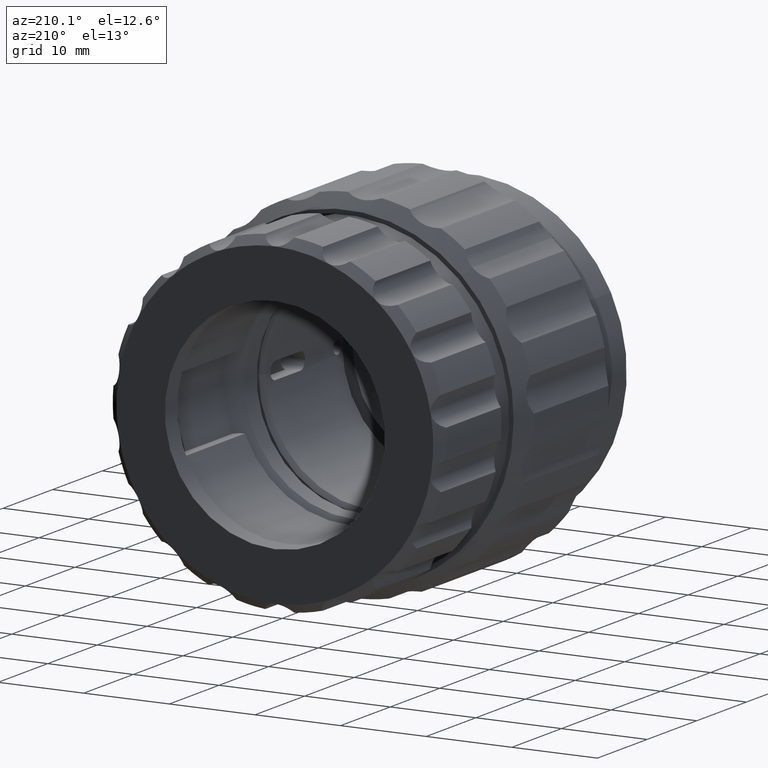
[diagram: clean part render]
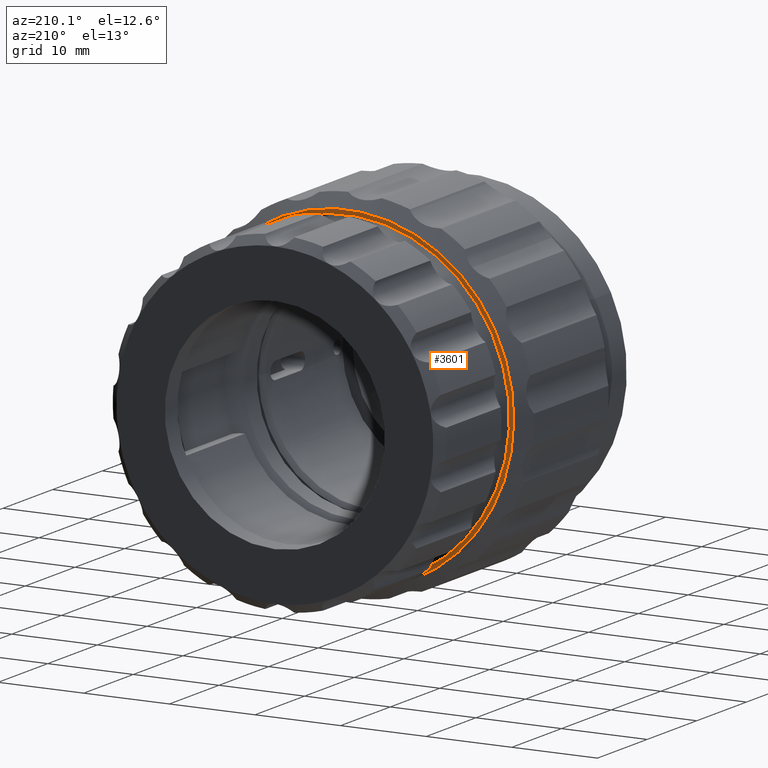
[diagram: same view with one face highlighted and labeled with its STEP entity id]
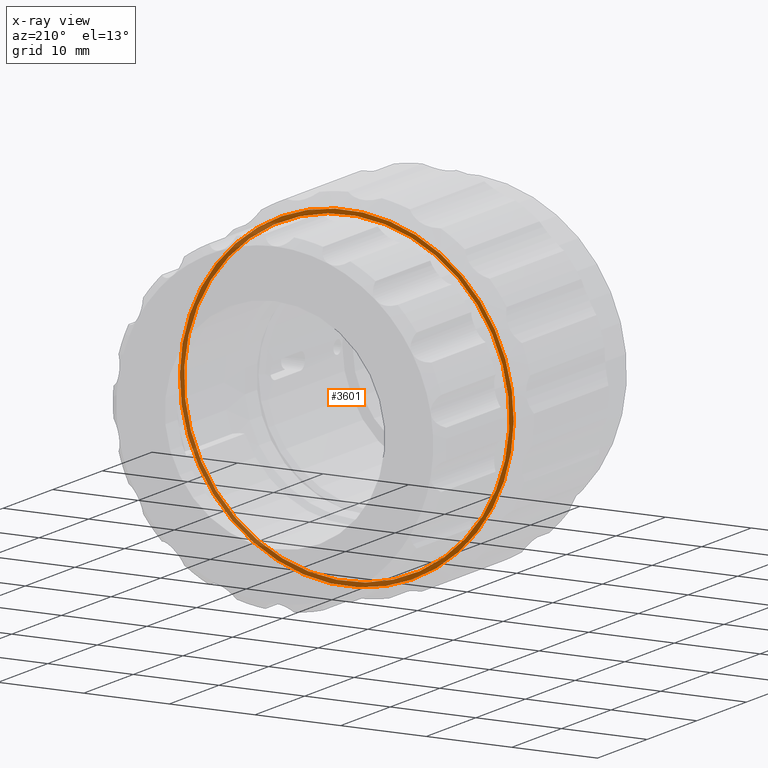
[diagram: x-ray of the same camera — body ghosted, the highlighted face saturated]
A machine part, auxiliary view. The second image highlights one B-rep face of the part: STEP entity #3601.
The next image is the same camera in x-ray: the body ghosted, the highlighted face saturated — about 48% of this face is hidden behind the body in this view.
In plain terms, the highlighted planar face has unit normal (0, -1, 0).
Its self-contained STEP definition (entity closure, byte-faithful):
#703 = AXIS2_PLACEMENT_3D ( 'NONE', #8324, #9148, #4645 ) ;
#722 = ORIENTED_EDGE ( 'NONE', *, *, #7395, .F. ) ;
#728 = FACE_BOUND ( 'NONE', #6244, .T. ) ;
#857 = DIRECTION ( 'NONE',  ( 0.000000000000000000, -1.000000000000000000, -0.000000000000000000 ) ) ;
#1038 = DIRECTION ( 'NONE',  ( 0.6871969081691012837, 0.000000000000000000, -0.7264712034229764415 ) ) ;
#1089 = CARTESIAN_POINT ( 'NONE',  ( 5.971701014312827738, -6.048755687005423987, 44.90330644533106863 ) ) ;
#1108 = ORIENTED_EDGE ( 'NONE', *, *, #2162, .F. ) ;
#1262 = AXIS2_PLACEMENT_3D ( 'NONE', #5587, #7174, #8722 ) ;
#1570 = PLANE ( 'NONE',  #703 ) ;
#2162 = EDGE_CURVE ( 'NONE', #3780, #7991, #7360, .T. ) ;
#2688 = EDGE_LOOP ( 'NONE', ( #722, #1108 ) ) ;
#2970 = DIRECTION ( 'NONE',  ( 0.6871969081691012837, 0.000000000000000000, -0.7264712034229765525 ) ) ;
#3158 = AXIS2_PLACEMENT_3D ( 'NONE', #1089, #8132, #1038 ) ;
#3316 = VERTEX_POINT ( 'NONE', #4574 ) ;
#3601 = ADVANCED_FACE ( 'NONE', ( #5301, #728 ), #1570, .F. ) ;
#3780 = VERTEX_POINT ( 'NONE', #4055 ) ;
#3941 = DIRECTION ( 'NONE',  ( 0.6871969081691012837, 0.000000000000000000, -0.7264712034229764415 ) ) ;
#4037 = CARTESIAN_POINT ( 'NONE',  ( 5.971701014312827738, -6.048755687005423987, 44.90330644533106863 ) ) ;
#4055 = CARTESIAN_POINT ( 'NONE',  ( -7.428638694984649682, -6.048755687005423987, 59.06949491207911507 ) ) ;
#4089 = CIRCLE ( 'NONE', #5342, 19.00000000000000355 ) ;
#4574 = CARTESIAN_POINT ( 'NONE',  ( 19.02844226952575468, -6.048755687005423987, 31.10035358029450947 ) ) ;
#4645 = DIRECTION ( 'NONE',  ( 0.6871969081691013947, 0.000000000000000000, -0.7264712034229764415 ) ) ;
#4877 = EDGE_CURVE ( 'NONE', #3316, #6285, #4089, .T. ) ;
#5301 = FACE_OUTER_BOUND ( 'NONE', #2688, .T. ) ;
#5342 = AXIS2_PLACEMENT_3D ( 'NONE', #6096, #7636, #2970 ) ;
#5445 = CARTESIAN_POINT ( 'NONE',  ( 19.37204072361030782, -6.048755687005423987, 30.73711797858302575 ) ) ;
#5587 = CARTESIAN_POINT ( 'NONE',  ( 5.971701014312827738, -6.048755687005423987, 44.90330644533106863 ) ) ;
#6040 = ORIENTED_EDGE ( 'NONE', *, *, #7324, .T. ) ;
#6096 = CARTESIAN_POINT ( 'NONE',  ( 5.971701014312827738, -6.048755687005423987, 44.90330644533106863 ) ) ;
#6244 = EDGE_LOOP ( 'NONE', ( #6521, #6040 ) ) ;
#6285 = VERTEX_POINT ( 'NONE', #6696 ) ;
#6521 = ORIENTED_EDGE ( 'NONE', *, *, #4877, .T. ) ;
#6696 = CARTESIAN_POINT ( 'NONE',  ( -7.085040240900093877, -6.048755687005423987, 58.70625931036762069 ) ) ;
#7100 = CIRCLE ( 'NONE', #8571, 19.50000000000000355 ) ;
#7174 = DIRECTION ( 'NONE',  ( 0.000000000000000000, -1.000000000000000000, -0.000000000000000000 ) ) ;
#7324 = EDGE_CURVE ( 'NONE', #6285, #3316, #10045, .T. ) ;
#7360 = CIRCLE ( 'NONE', #3158, 19.50000000000000355 ) ;
#7395 = EDGE_CURVE ( 'NONE', #7991, #3780, #7100, .T. ) ;
#7636 = DIRECTION ( 'NONE',  ( 0.000000000000000000, -1.000000000000000000, -0.000000000000000000 ) ) ;
#7991 = VERTEX_POINT ( 'NONE', #5445 ) ;
#8132 = DIRECTION ( 'NONE',  ( 0.000000000000000000, -1.000000000000000000, -0.000000000000000000 ) ) ;
#8324 = CARTESIAN_POINT ( 'NONE',  ( -7.831251850723726982, -6.048755687005423987, 31.84656519011813813 ) ) ;
#8571 = AXIS2_PLACEMENT_3D ( 'NONE', #4037, #857, #3941 ) ;
#8722 = DIRECTION ( 'NONE',  ( 0.6871969081691012837, 0.000000000000000000, -0.7264712034229765525 ) ) ;
#9148 = DIRECTION ( 'NONE',  ( 0.000000000000000000, -1.000000000000000000, 0.000000000000000000 ) ) ;
#10045 = CIRCLE ( 'NONE', #1262, 19.00000000000000355 ) ;